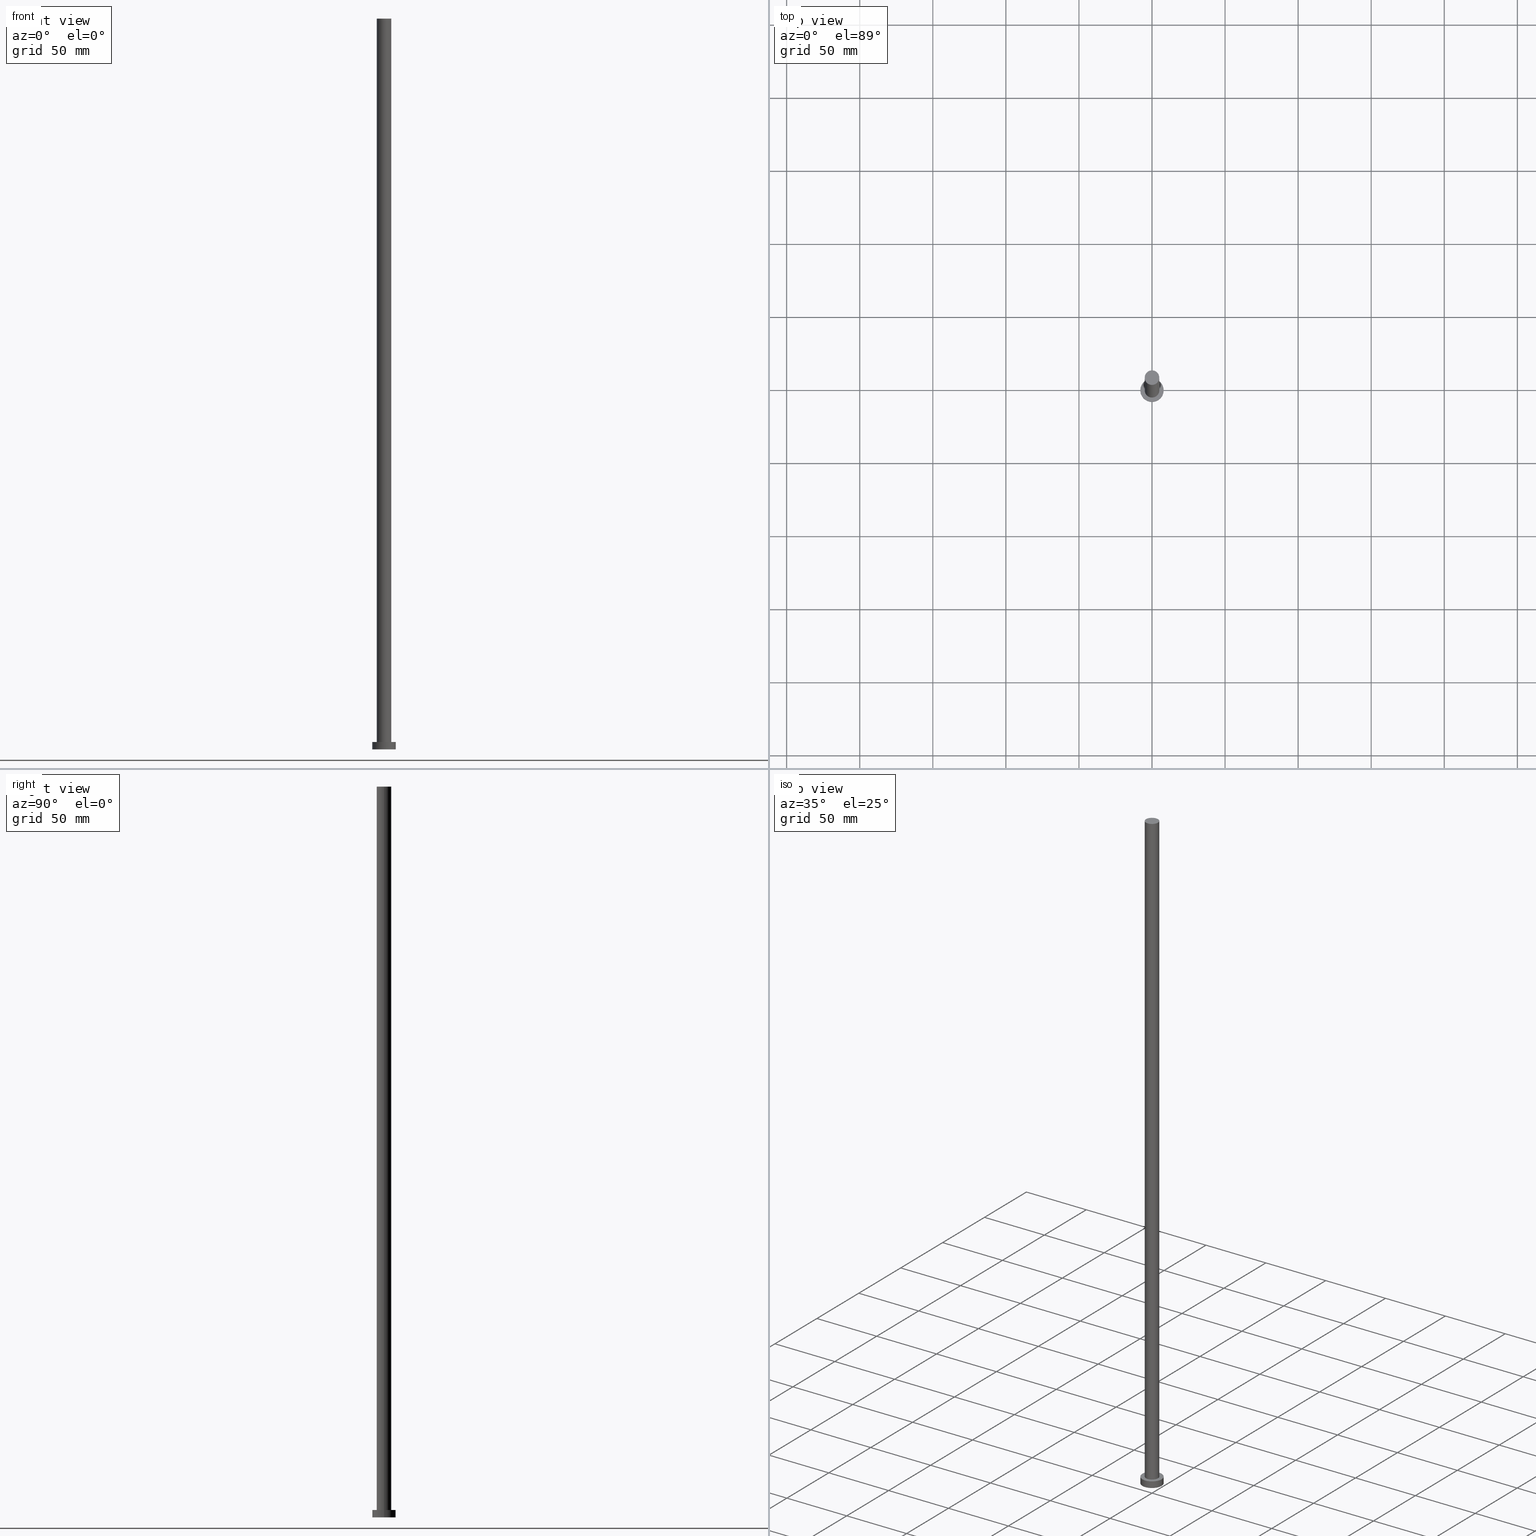
[diagram: canonical four-view strip — front | top / right | iso, engineering-drawing reading convention]
A machine part, canonical four-view strip (front | top / right | iso — engineering-drawing reading convention). The complete STEP part file that produces these views, byte-faithful:
ISO-10303-21;
HEADER;
FILE_DESCRIPTION (( 'STEP AP203' ),
    '1' );
FILE_NAME ('d11f.STEP',
    '2023-02-13T12:05:50',
    ( '' ),
    ( '' ),
    'SwSTEP 2.0',
    'SolidWorks 2019',
    '' );
FILE_SCHEMA (( 'CONFIG_CONTROL_DESIGN' ));
ENDSEC;

DATA;
#1 = CARTESIAN_POINT ( 'NONE',  ( -5.000000000000000888, 0.000000000000000000, 500.0000000000000000 ) ) ;
#2 = DIRECTION ( 'NONE',  ( 0.000000000000000000, 0.000000000000000000, 1.000000000000000000 ) ) ;
#3 = DIRECTION ( 'NONE',  ( 1.000000000000000000, 0.000000000000000000, 0.000000000000000000 ) ) ;
#4 = CC_DESIGN_APPROVAL ( #170, ( #132 ) ) ;
#5 = CARTESIAN_POINT ( 'NONE',  ( 5.000000000000000888, 6.123233995736767268E-16, 500.0000000000000000 ) ) ;
#6 = CARTESIAN_POINT ( 'NONE',  ( -8.000000000000000000, 0.000000000000000000, 5.000000000000000000 ) ) ;
#7 = UNCERTAINTY_MEASURE_WITH_UNIT (LENGTH_MEASURE( 1.000000000000000082E-05 ), #43, 'distance_accuracy_value', 'NONE');
#8 = DIRECTION ( 'NONE',  ( 0.000000000000000000, 0.000000000000000000, 1.000000000000000000 ) ) ;
#9 = LOCAL_TIME ( 13, 5, 50.00000000000000000, #193 ) ;
#10 = VERTEX_POINT ( 'NONE', #1 ) ;
#11 = APPROVAL_ROLE ( '' ) ;
#12 = EDGE_LOOP ( 'NONE', ( #91, #115 ) ) ;
#13 = ORIENTED_EDGE ( 'NONE', *, *, #27, .T. ) ;
#14 = EDGE_LOOP ( 'NONE', ( #93, #253, #236, #49 ) ) ;
#15 = DIRECTION ( 'NONE',  ( 0.000000000000000000, 0.000000000000000000, 1.000000000000000000 ) ) ;
#16 = DIRECTION ( 'NONE',  ( 0.000000000000000000, 0.000000000000000000, 1.000000000000000000 ) ) ;
#17 = LOCAL_TIME ( 13, 5, 50.00000000000000000, #66 ) ;
#18 = DIRECTION ( 'NONE',  ( -1.000000000000000000, 0.000000000000000000, 0.000000000000000000 ) ) ;
#19 = LINE ( 'NONE', #203, #130 ) ;
#20 = DIRECTION ( 'NONE',  ( 1.000000000000000000, 0.000000000000000000, -0.000000000000000000 ) ) ;
#21 = ORGANIZATION ( 'NEUR�EN�', 'NEUR�EN�', '' ) ;
#22 = COORDINATED_UNIVERSAL_TIME_OFFSET ( 1, 0, .AHEAD. ) ;
#23 = DATE_TIME_ROLE ( 'creation_date' ) ;
#24 = CC_DESIGN_PERSON_AND_ORGANIZATION_ASSIGNMENT ( #149, #118, ( #132 ) ) ;
#25 = APPLICATION_PROTOCOL_DEFINITION ( 'international standard', 'config_control_design', 1994, #80 ) ;
#26 = CIRCLE ( 'NONE', #166, 5.000000000000000888 ) ;
#27 = EDGE_CURVE ( 'NONE', #34, #153, #192, .T. ) ;
#28 = APPLICATION_CONTEXT ( 'configuration controlled 3d designs of mechanical parts and assemblies' ) ;
#29 = DIRECTION ( 'NONE',  ( -0.000000000000000000, -0.000000000000000000, -1.000000000000000000 ) ) ;
#30 = ORIENTED_EDGE ( 'NONE', *, *, #223, .F. ) ;
#31 = AXIS2_PLACEMENT_3D ( 'NONE', #158, #140, #138 ) ;
#32 = DATE_TIME_ROLE ( 'classification_date' ) ;
#33 = EDGE_LOOP ( 'NONE', ( #30, #219, #113, #13 ) ) ;
#34 = VERTEX_POINT ( 'NONE', #184 ) ;
#35 = AXIS2_PLACEMENT_3D ( 'NONE', #163, #239, #160 ) ;
#36 = PERSON_AND_ORGANIZATION ( #162, #21 ) ;
#37 = EDGE_LOOP ( 'NONE', ( #173, #252, #120, #116 ) ) ;
#38 = CARTESIAN_POINT ( 'NONE',  ( 8.000000000000000000, 9.797174393178825657E-16, 0.000000000000000000 ) ) ;
#39 = DIRECTION ( 'NONE',  ( 1.000000000000000000, 0.000000000000000000, -0.000000000000000000 ) ) ;
#40 = FACE_OUTER_BOUND ( 'NONE', #14, .T. ) ;
#41 = FACE_OUTER_BOUND ( 'NONE', #33, .T. ) ;
#42 = DIRECTION ( 'NONE',  ( 0.000000000000000000, 0.000000000000000000, 1.000000000000000000 ) ) ;
#43 =( LENGTH_UNIT ( ) NAMED_UNIT ( * ) SI_UNIT ( .MILLI., .METRE. ) );
#44 = ADVANCED_FACE ( 'NONE', ( #57 ), #76, .T. ) ;
#45 = VECTOR ( 'NONE', #164, 1000.000000000000000 ) ;
#46 = PERSON_AND_ORGANIZATION ( #162, #21 ) ;
#47 = APPROVAL_DATE_TIME ( #232, #105 ) ;
#48 = VERTEX_POINT ( 'NONE', #255 ) ;
#49 = ORIENTED_EDGE ( 'NONE', *, *, #216, .F. ) ;
#50 = CIRCLE ( 'NONE', #121, 8.000000000000000000 ) ;
#51 = EDGE_CURVE ( 'NONE', #153, #34, #26, .T. ) ;
#52 = DATE_AND_TIME ( #71, #182 ) ;
#53 = ORIENTED_EDGE ( 'NONE', *, *, #117, .T. ) ;
#54 = AXIS2_PLACEMENT_3D ( 'NONE', #229, #209, #20 ) ;
#55 = CARTESIAN_POINT ( 'NONE',  ( 5.000000000000000888, 6.123233995736767268E-16, 500.0000000000000000 ) ) ;
#56 = DIRECTION ( 'NONE',  ( 1.000000000000000000, 0.000000000000000000, 0.000000000000000000 ) ) ;
#57 = FACE_OUTER_BOUND ( 'NONE', #198, .T. ) ;
#58 = AXIS2_PLACEMENT_3D ( 'NONE', #126, #245, #18 ) ;
#59 = PLANE ( 'NONE',  #54 ) ;
#60 = CARTESIAN_POINT ( 'NONE',  ( 0.000000000000000000, 0.000000000000000000, 5.000000000000000000 ) ) ;
#61 = PERSON_AND_ORGANIZATION ( #162, #21 ) ;
#62 = LINE ( 'NONE', #6, #45 ) ;
#63 = CIRCLE ( 'NONE', #98, 8.000000000000000000 ) ;
#64 = CARTESIAN_POINT ( 'NONE',  ( 0.000000000000000000, 0.000000000000000000, 5.000000000000000000 ) ) ;
#65 = CALENDAR_DATE ( 2023, 13, 2 ) ;
#66 = COORDINATED_UNIVERSAL_TIME_OFFSET ( 1, 0, .AHEAD. ) ;
#67 = EDGE_CURVE ( 'NONE', #10, #72, #235, .T. ) ;
#68 = ORIENTED_EDGE ( 'NONE', *, *, #216, .T. ) ;
#69 = PERSON_AND_ORGANIZATION_ROLE ( 'classification_officer' ) ;
#70 = VERTEX_POINT ( 'NONE', #38 ) ;
#71 = CALENDAR_DATE ( 2023, 13, 2 ) ;
#72 = VERTEX_POINT ( 'NONE', #55 ) ;
#73 = CYLINDRICAL_SURFACE ( 'NONE', #31, 5.000000000000000888 ) ;
#74 = CARTESIAN_POINT ( 'NONE',  ( 0.000000000000000000, 0.000000000000000000, 500.0000000000000000 ) ) ;
#75 = ADVANCED_FACE ( 'NONE', ( #139 ), #73, .T. ) ;
#76 = CYLINDRICAL_SURFACE ( 'NONE', #112, 8.000000000000000000 ) ;
#77 = DIRECTION ( 'NONE',  ( 0.000000000000000000, 0.000000000000000000, 1.000000000000000000 ) ) ;
#78 = DIRECTION ( 'NONE',  ( -0.000000000000000000, -0.000000000000000000, -1.000000000000000000 ) ) ;
#79 = LOCAL_TIME ( 13, 5, 50.00000000000000000, #22 ) ;
#80 = APPLICATION_CONTEXT ( 'configuration controlled 3d designs of mechanical parts and assemblies' ) ;
#81 = SECURITY_CLASSIFICATION ( '', '', #196 ) ;
#82 = DIRECTION ( 'NONE',  ( 1.000000000000000000, 0.000000000000000000, -0.000000000000000000 ) ) ;
#83 = DIRECTION ( 'NONE',  ( 0.000000000000000000, 0.000000000000000000, 1.000000000000000000 ) ) ;
#84 = AXIS2_PLACEMENT_3D ( 'NONE', #143, #179, #56 ) ;
#85 =( NAMED_UNIT ( * ) SI_UNIT ( $, .STERADIAN. ) SOLID_ANGLE_UNIT ( ) );
#86 = APPROVAL_ROLE ( '' ) ;
#87 = PERSON_AND_ORGANIZATION_ROLE ( 'design_owner' ) ;
#88 = PRODUCT_RELATED_PRODUCT_CATEGORY ( 'detail', '', ( #150 ) ) ;
#89 = CC_DESIGN_DATE_AND_TIME_ASSIGNMENT ( #213, #23, ( #155 ) ) ;
#90 = VERTEX_POINT ( 'NONE', #101 ) ;
#91 = ORIENTED_EDGE ( 'NONE', *, *, #27, .F. ) ;
#92 = MANIFOLD_SOLID_BREP ( 'P�idat vysunut�m3', #187 ) ;
#93 = ORIENTED_EDGE ( 'NONE', *, *, #97, .F. ) ;
#94 = EDGE_LOOP ( 'NONE', ( #224, #53 ) ) ;
#95 = DIRECTION ( 'NONE',  ( 1.000000000000000000, 0.000000000000000000, 0.000000000000000000 ) ) ;
#96 = AXIS2_PLACEMENT_3D ( 'NONE', #228, #159, #3 ) ;
#97 = EDGE_CURVE ( 'NONE', #90, #48, #177, .T. ) ;
#98 = AXIS2_PLACEMENT_3D ( 'NONE', #181, #2, #128 ) ;
#99 = DIRECTION ( 'NONE',  ( 0.000000000000000000, 0.000000000000000000, 1.000000000000000000 ) ) ;
#100 = CARTESIAN_POINT ( 'NONE',  ( 0.000000000000000000, 0.000000000000000000, 0.000000000000000000 ) ) ;
#101 = CARTESIAN_POINT ( 'NONE',  ( 8.000000000000000000, 9.797174393178825657E-16, 5.000000000000000000 ) ) ;
#102 = DIRECTION ( 'NONE',  ( -1.000000000000000000, 0.000000000000000000, 0.000000000000000000 ) ) ;
#103 = APPROVAL_STATUS ( 'not_yet_approved' ) ;
#104 = APPROVAL_ROLE ( '' ) ;
#105 = APPROVAL ( #169, 'NEUR�EN�' ) ;
#106 = AXIS2_PLACEMENT_3D ( 'NONE', #64, #83, #82 ) ;
#107 = PRODUCT_DEFINITION_SHAPE ( 'NONE', 'NONE',  #155 ) ;
#108 = CC_DESIGN_PERSON_AND_ORGANIZATION_ASSIGNMENT ( #111, #69, ( #81 ) ) ;
#109 = PLANE ( 'NONE',  #106 ) ;
#110 = ADVANCED_FACE ( 'NONE', ( #40 ), #227, .T. ) ;
#111 = PERSON_AND_ORGANIZATION ( #162, #21 ) ;
#112 = AXIS2_PLACEMENT_3D ( 'NONE', #204, #242, #247 ) ;
#113 = ORIENTED_EDGE ( 'NONE', *, *, #246, .T. ) ;
#114 = APPROVAL_PERSON_ORGANIZATION ( #144, #105, #86 ) ;
#115 = ORIENTED_EDGE ( 'NONE', *, *, #51, .F. ) ;
#116 = ORIENTED_EDGE ( 'NONE', *, *, #246, .F. ) ;
#117 = EDGE_CURVE ( 'NONE', #72, #10, #174, .T. ) ;
#118 = PERSON_AND_ORGANIZATION_ROLE ( 'creator' ) ;
#119 = CIRCLE ( 'NONE', #244, 8.000000000000000000 ) ;
#120 = ORIENTED_EDGE ( 'NONE', *, *, #51, .T. ) ;
#121 = AXIS2_PLACEMENT_3D ( 'NONE', #100, #42, #180 ) ;
#122 = ORIENTED_EDGE ( 'NONE', *, *, #157, .F. ) ;
#123 = CARTESIAN_POINT ( 'NONE',  ( 5.000000000000000888, 6.123233995736767268E-16, 5.000000000000000000 ) ) ;
#124 = CARTESIAN_POINT ( 'NONE',  ( 0.000000000000000000, 0.000000000000000000, 5.000000000000000000 ) ) ;
#125 = APPROVAL ( #220, 'NEUR�EN�' ) ;
#126 = CARTESIAN_POINT ( 'NONE',  ( 0.000000000000000000, 0.000000000000000000, 5.000000000000000000 ) ) ;
#127 = CARTESIAN_POINT ( 'NONE',  ( 0.000000000000000000, 0.000000000000000000, 500.0000000000000000 ) ) ;
#128 = DIRECTION ( 'NONE',  ( 1.000000000000000000, 0.000000000000000000, 0.000000000000000000 ) ) ;
#129 =( NAMED_UNIT ( * ) PLANE_ANGLE_UNIT ( ) SI_UNIT ( $, .RADIAN. ) );
#130 = VECTOR ( 'NONE', #78, 1000.000000000000000 ) ;
#131 = ADVANCED_BREP_SHAPE_REPRESENTATION ( 'd11f', ( #92, #147 ), #141 ) ;
#132 = PRODUCT_DEFINITION_FORMATION_WITH_SPECIFIED_SOURCE ( 'LIBOVOLN�', '', #150, .NOT_KNOWN. ) ;
#133 = CC_DESIGN_PERSON_AND_ORGANIZATION_ASSIGNMENT ( #36, #156, ( #132 ) ) ;
#134 = CC_DESIGN_APPROVAL ( #105, ( #155 ) ) ;
#135 = ORIENTED_EDGE ( 'NONE', *, *, #172, .F. ) ;
#136 = CALENDAR_DATE ( 2023, 13, 2 ) ;
#137 = ADVANCED_FACE ( 'NONE', ( #178 ), #226, .T. ) ;
#138 = DIRECTION ( 'NONE',  ( -1.000000000000000000, 0.000000000000000000, 0.000000000000000000 ) ) ;
#139 = FACE_OUTER_BOUND ( 'NONE', #37, .T. ) ;
#140 = DIRECTION ( 'NONE',  ( -0.000000000000000000, -0.000000000000000000, -1.000000000000000000 ) ) ;
#141 =( GEOMETRIC_REPRESENTATION_CONTEXT ( 3 ) GLOBAL_UNCERTAINTY_ASSIGNED_CONTEXT ( ( #7 ) ) GLOBAL_UNIT_ASSIGNED_CONTEXT ( ( #43, #129, #85 ) ) REPRESENTATION_CONTEXT ( 'NONE', 'WORKASPACE' ) );
#142 = DIRECTION ( 'NONE',  ( 1.000000000000000000, 0.000000000000000000, 0.000000000000000000 ) ) ;
#143 = CARTESIAN_POINT ( 'NONE',  ( 0.000000000000000000, 0.000000000000000000, 500.0000000000000000 ) ) ;
#144 = PERSON_AND_ORGANIZATION ( #162, #21 ) ;
#145 = AXIS2_PLACEMENT_3D ( 'NONE', #74, #15, #95 ) ;
#146 = MECHANICAL_CONTEXT ( 'NONE', #80, 'mechanical' ) ;
#147 = AXIS2_PLACEMENT_3D ( 'NONE', #189, #8, #214 ) ;
#148 = LINE ( 'NONE', #165, #249 ) ;
#149 = PERSON_AND_ORGANIZATION ( #162, #21 ) ;
#150 = PRODUCT ( 'd11f', 'd11f', '', ( #146 ) ) ;
#151 = APPROVAL_DATE_TIME ( #185, #170 ) ;
#152 = APPROVAL_PERSON_ORGANIZATION ( #251, #170, #104 ) ;
#153 = VERTEX_POINT ( 'NONE', #123 ) ;
#154 = ORIENTED_EDGE ( 'NONE', *, *, #168, .T. ) ;
#155 = PRODUCT_DEFINITION ( 'NEZN�M�', '', #132, #183 ) ;
#156 = PERSON_AND_ORGANIZATION_ROLE ( 'design_supplier' ) ;
#157 = EDGE_CURVE ( 'NONE', #48, #90, #119, .T. ) ;
#158 = CARTESIAN_POINT ( 'NONE',  ( 0.000000000000000000, 0.000000000000000000, 500.0000000000000000 ) ) ;
#159 = DIRECTION ( 'NONE',  ( 0.000000000000000000, 0.000000000000000000, 1.000000000000000000 ) ) ;
#160 = DIRECTION ( 'NONE',  ( 1.000000000000000000, 0.000000000000000000, 0.000000000000000000 ) ) ;
#161 = FACE_OUTER_BOUND ( 'NONE', #202, .T. ) ;
#162 = PERSON ( 'NEUR�EN�', 'NEUR�EN�', 'NEUR�EN�', ('NEUR�EN�'), ('NEUR�EN�'), ('NEUR�EN�') ) ;
#163 = CARTESIAN_POINT ( 'NONE',  ( 0.000000000000000000, 0.000000000000000000, 5.000000000000000000 ) ) ;
#164 = DIRECTION ( 'NONE',  ( -0.000000000000000000, -0.000000000000000000, -1.000000000000000000 ) ) ;
#165 = CARTESIAN_POINT ( 'NONE',  ( -5.000000000000000888, 0.000000000000000000, 500.0000000000000000 ) ) ;
#166 = AXIS2_PLACEMENT_3D ( 'NONE', #60, #77, #142 ) ;
#167 = PERSON_AND_ORGANIZATION_ROLE ( 'creator' ) ;
#168 = EDGE_CURVE ( 'NONE', #222, #70, #50, .T. ) ;
#169 = APPROVAL_STATUS ( 'not_yet_approved' ) ;
#170 = APPROVAL ( #103, 'NEUR�EN�' ) ;
#171 = ORIENTED_EDGE ( 'NONE', *, *, #210, .F. ) ;
#172 = EDGE_CURVE ( 'NONE', #70, #222, #63, .T. ) ;
#173 = ORIENTED_EDGE ( 'NONE', *, *, #117, .F. ) ;
#174 = CIRCLE ( 'NONE', #84, 5.000000000000000888 ) ;
#175 = EDGE_LOOP ( 'NONE', ( #197, #200 ) ) ;
#176 = CC_DESIGN_PERSON_AND_ORGANIZATION_ASSIGNMENT ( #46, #167, ( #155 ) ) ;
#177 = CIRCLE ( 'NONE', #96, 8.000000000000000000 ) ;
#178 = FACE_OUTER_BOUND ( 'NONE', #94, .T. ) ;
#179 = DIRECTION ( 'NONE',  ( 0.000000000000000000, 0.000000000000000000, 1.000000000000000000 ) ) ;
#180 = DIRECTION ( 'NONE',  ( 1.000000000000000000, 0.000000000000000000, 0.000000000000000000 ) ) ;
#181 = CARTESIAN_POINT ( 'NONE',  ( 0.000000000000000000, 0.000000000000000000, 0.000000000000000000 ) ) ;
#182 = LOCAL_TIME ( 13, 5, 50.00000000000000000, #225 ) ;
#183 = DESIGN_CONTEXT ( 'detailed design', #28, 'design' ) ;
#184 = CARTESIAN_POINT ( 'NONE',  ( -5.000000000000000888, 0.000000000000000000, 5.000000000000000000 ) ) ;
#185 = DATE_AND_TIME ( #65, #17 ) ;
#186 = FACE_BOUND ( 'NONE', #12, .T. ) ;
#187 = CLOSED_SHELL ( 'NONE', ( #75, #110, #44, #230, #190, #199, #137 ) ) ;
#188 = APPLICATION_PROTOCOL_DEFINITION ( 'international standard', 'config_control_design', 1994, #28 ) ;
#189 = CARTESIAN_POINT ( 'NONE',  ( 0.000000000000000000, 0.000000000000000000, 0.000000000000000000 ) ) ;
#190 = ADVANCED_FACE ( 'NONE', ( #161 ), #59, .F. ) ;
#191 = DATE_AND_TIME ( #136, #9 ) ;
#192 = CIRCLE ( 'NONE', #35, 5.000000000000000888 ) ;
#193 = COORDINATED_UNIVERSAL_TIME_OFFSET ( 1, 0, .AHEAD. ) ;
#194 = ORIENTED_EDGE ( 'NONE', *, *, #168, .F. ) ;
#195 = CC_DESIGN_APPROVAL ( #125, ( #81 ) ) ;
#196 = SECURITY_CLASSIFICATION_LEVEL ( 'unclassified' ) ;
#197 = ORIENTED_EDGE ( 'NONE', *, *, #157, .T. ) ;
#198 = EDGE_LOOP ( 'NONE', ( #171, #122, #68, #154 ) ) ;
#199 = ADVANCED_FACE ( 'NONE', ( #41 ), #231, .T. ) ;
#200 = ORIENTED_EDGE ( 'NONE', *, *, #97, .T. ) ;
#201 = LOCAL_TIME ( 13, 5, 50.00000000000000000, #218 ) ;
#202 = EDGE_LOOP ( 'NONE', ( #194, #135 ) ) ;
#203 = CARTESIAN_POINT ( 'NONE',  ( 8.000000000000000000, 9.797174393178825657E-16, 5.000000000000000000 ) ) ;
#204 = CARTESIAN_POINT ( 'NONE',  ( 0.000000000000000000, 0.000000000000000000, 5.000000000000000000 ) ) ;
#205 = CC_DESIGN_SECURITY_CLASSIFICATION ( #81, ( #132 ) ) ;
#206 = CC_DESIGN_PERSON_AND_ORGANIZATION_ASSIGNMENT ( #61, #87, ( #150 ) ) ;
#207 = DIRECTION ( 'NONE',  ( 1.000000000000000000, 0.000000000000000000, 0.000000000000000000 ) ) ;
#208 = DIRECTION ( 'NONE',  ( -0.000000000000000000, -0.000000000000000000, -1.000000000000000000 ) ) ;
#209 = DIRECTION ( 'NONE',  ( 0.000000000000000000, 0.000000000000000000, 1.000000000000000000 ) ) ;
#210 = EDGE_CURVE ( 'NONE', #90, #70, #19, .T. ) ;
#211 = VECTOR ( 'NONE', #29, 1000.000000000000000 ) ;
#212 = LINE ( 'NONE', #5, #211 ) ;
#213 = DATE_AND_TIME ( #250, #79 ) ;
#214 = DIRECTION ( 'NONE',  ( 1.000000000000000000, 0.000000000000000000, 0.000000000000000000 ) ) ;
#215 = AXIS2_PLACEMENT_3D ( 'NONE', #241, #16, #39 ) ;
#216 = EDGE_CURVE ( 'NONE', #48, #222, #62, .T. ) ;
#217 = CARTESIAN_POINT ( 'NONE',  ( -8.000000000000000000, 0.000000000000000000, 0.000000000000000000 ) ) ;
#218 = COORDINATED_UNIVERSAL_TIME_OFFSET ( 1, 0, .AHEAD. ) ;
#219 = ORIENTED_EDGE ( 'NONE', *, *, #67, .F. ) ;
#220 = APPROVAL_STATUS ( 'not_yet_approved' ) ;
#221 = SHAPE_DEFINITION_REPRESENTATION ( #107, #131 ) ;
#222 = VERTEX_POINT ( 'NONE', #217 ) ;
#223 = EDGE_CURVE ( 'NONE', #72, #153, #212, .T. ) ;
#224 = ORIENTED_EDGE ( 'NONE', *, *, #67, .T. ) ;
#225 = COORDINATED_UNIVERSAL_TIME_OFFSET ( 1, 0, .AHEAD. ) ;
#226 = PLANE ( 'NONE',  #215 ) ;
#227 = CYLINDRICAL_SURFACE ( 'NONE', #58, 8.000000000000000000 ) ;
#228 = CARTESIAN_POINT ( 'NONE',  ( 0.000000000000000000, 0.000000000000000000, 5.000000000000000000 ) ) ;
#229 = CARTESIAN_POINT ( 'NONE',  ( 0.000000000000000000, 0.000000000000000000, 0.000000000000000000 ) ) ;
#230 = ADVANCED_FACE ( 'NONE', ( #186, #233 ), #109, .T. ) ;
#231 = CYLINDRICAL_SURFACE ( 'NONE', #254, 5.000000000000000888 ) ;
#232 = DATE_AND_TIME ( #248, #201 ) ;
#233 = FACE_OUTER_BOUND ( 'NONE', #175, .T. ) ;
#234 = DIRECTION ( 'NONE',  ( -0.000000000000000000, -0.000000000000000000, -1.000000000000000000 ) ) ;
#235 = CIRCLE ( 'NONE', #145, 5.000000000000000888 ) ;
#236 = ORIENTED_EDGE ( 'NONE', *, *, #172, .T. ) ;
#237 = PERSON_AND_ORGANIZATION ( #162, #21 ) ;
#238 = APPROVAL_DATE_TIME ( #191, #125 ) ;
#239 = DIRECTION ( 'NONE',  ( 0.000000000000000000, 0.000000000000000000, 1.000000000000000000 ) ) ;
#240 = APPROVAL_PERSON_ORGANIZATION ( #237, #125, #11 ) ;
#241 = CARTESIAN_POINT ( 'NONE',  ( 0.000000000000000000, 0.000000000000000000, 500.0000000000000000 ) ) ;
#242 = DIRECTION ( 'NONE',  ( -0.000000000000000000, -0.000000000000000000, -1.000000000000000000 ) ) ;
#243 = CC_DESIGN_DATE_AND_TIME_ASSIGNMENT ( #52, #32, ( #81 ) ) ;
#244 = AXIS2_PLACEMENT_3D ( 'NONE', #124, #99, #207 ) ;
#245 = DIRECTION ( 'NONE',  ( -0.000000000000000000, -0.000000000000000000, -1.000000000000000000 ) ) ;
#246 = EDGE_CURVE ( 'NONE', #10, #34, #148, .T. ) ;
#247 = DIRECTION ( 'NONE',  ( -1.000000000000000000, 0.000000000000000000, 0.000000000000000000 ) ) ;
#248 = CALENDAR_DATE ( 2023, 13, 2 ) ;
#249 = VECTOR ( 'NONE', #234, 1000.000000000000000 ) ;
#250 = CALENDAR_DATE ( 2023, 13, 2 ) ;
#251 = PERSON_AND_ORGANIZATION ( #162, #21 ) ;
#252 = ORIENTED_EDGE ( 'NONE', *, *, #223, .T. ) ;
#253 = ORIENTED_EDGE ( 'NONE', *, *, #210, .T. ) ;
#254 = AXIS2_PLACEMENT_3D ( 'NONE', #127, #208, #102 ) ;
#255 = CARTESIAN_POINT ( 'NONE',  ( -8.000000000000000000, 0.000000000000000000, 5.000000000000000000 ) ) ;
ENDSEC;
END-ISO-10303-21;
